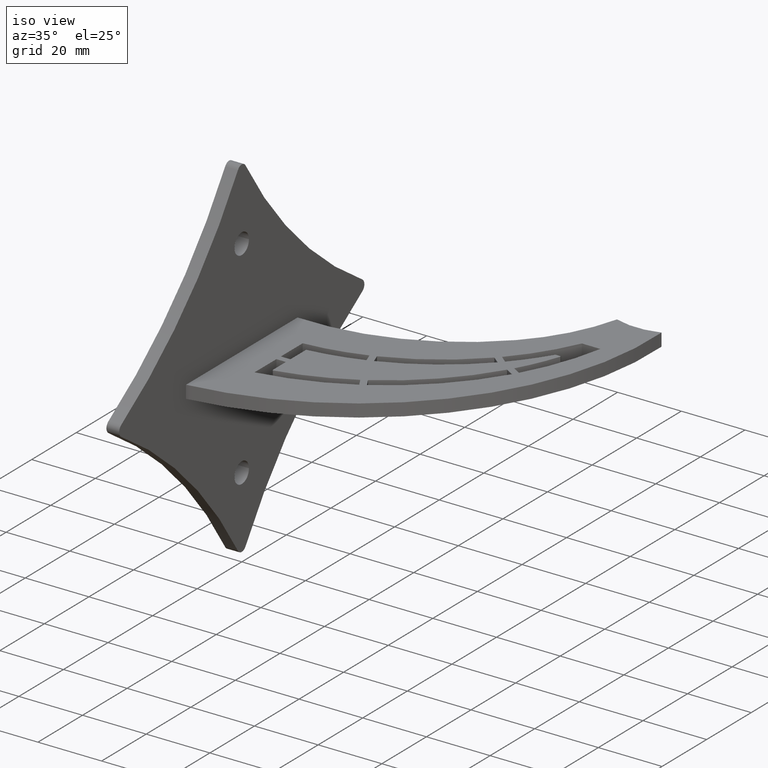
[diagram: clean part render]
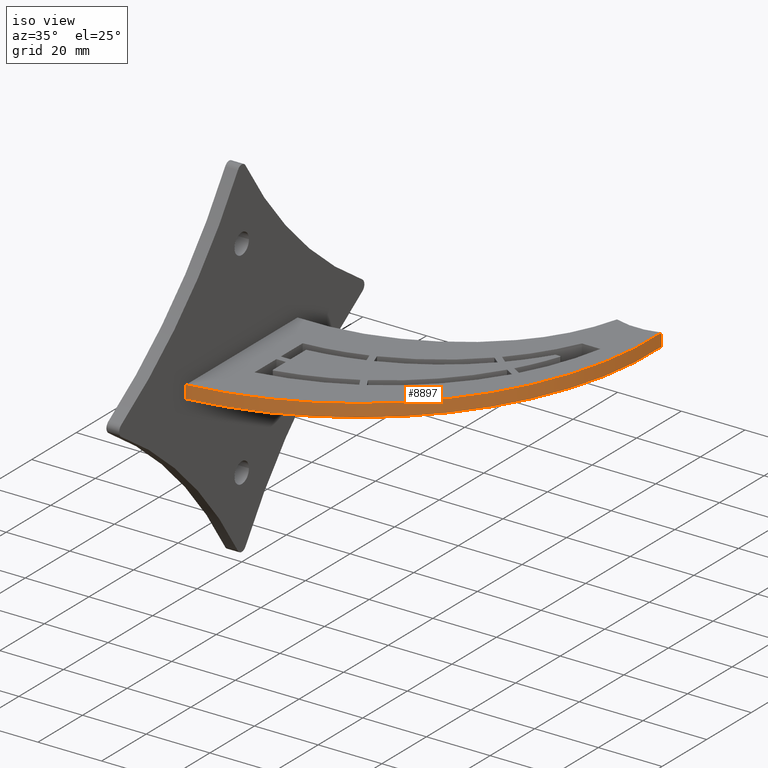
[diagram: same view with one face highlighted and labeled with its STEP entity id]
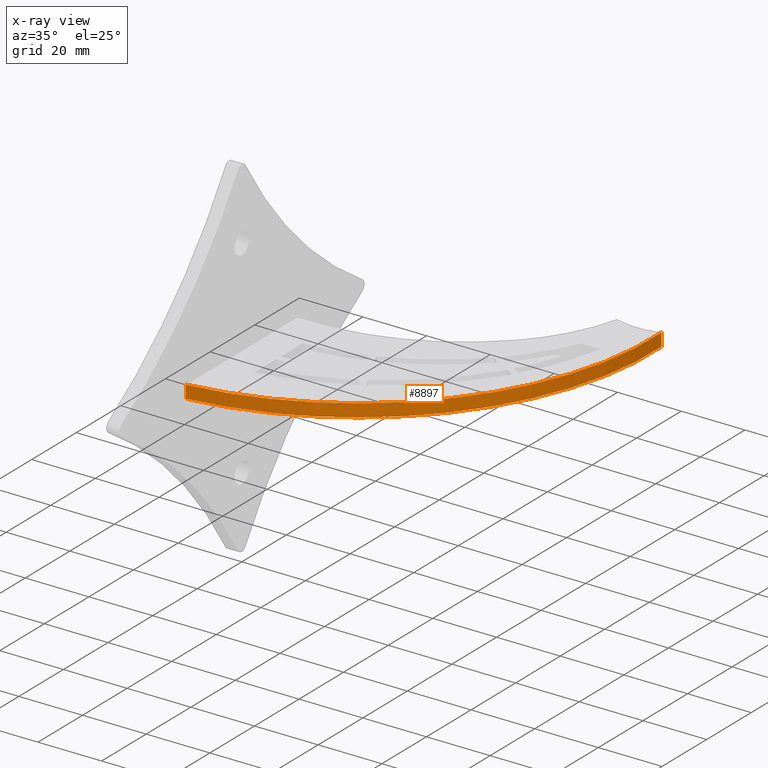
[diagram: x-ray of the same camera — body ghosted, the highlighted face saturated]
A machine part, iso view. The second image highlights one B-rep face of the part: STEP entity #8897.
The next image is the same camera in x-ray: the body ghosted, the highlighted face saturated — about 0% of this face is hidden behind the body in this view.
In plain terms, the highlighted cylindrical surface (partial cylindrical patch) has radius 92 mm, axis along (-0, -0, -1).
Its self-contained STEP definition (entity closure, byte-faithful):
#142 = DIRECTION ( 'NONE',  ( -0.000000000000000000, -0.000000000000000000, -1.000000000000000000 ) ) ;
#371 = VERTEX_POINT ( 'NONE', #3362 ) ;
#972 = LINE ( 'NONE', #1583, #5935 ) ;
#1151 = VECTOR ( 'NONE', #142, 1000.000000000000000 ) ;
#1583 = CARTESIAN_POINT ( 'NONE',  ( 2.220446049250313081E-13, -24.99999999999879918, 2.000000000000000000 ) ) ;
#1842 = FACE_OUTER_BOUND ( 'NONE', #5920, .T. ) ;
#1971 = LINE ( 'NONE', #8501, #1151 ) ;
#3036 = CARTESIAN_POINT ( 'NONE',  ( -9.878794471127335441, 66.46807869304582539, -2.000000000000000000 ) ) ;
#3362 = CARTESIAN_POINT ( 'NONE',  ( -1.998139615876600116E-12, -24.99999999999961986, 2.000000000000000000 ) ) ;
#3431 = CARTESIAN_POINT ( 'NONE',  ( 81.99999999999997158, 71.18900302333739205, 2.000000000000000000 ) ) ;
#3924 = CARTESIAN_POINT ( 'NONE',  ( -9.878794471127335441, 66.46807869304582539, 2.000000000000000000 ) ) ;
#5027 = EDGE_CURVE ( 'NONE', #10942, #7633, #1971, .T. ) ;
#5425 = CIRCLE ( 'NONE', #8614, 91.99999999999938893 ) ;
#5477 = ORIENTED_EDGE ( 'NONE', *, *, #5027, .F. ) ;
#5920 = EDGE_LOOP ( 'NONE', ( #12720, #5477, #8381, #7351 ) ) ;
#5935 = VECTOR ( 'NONE', #11131, 1000.000000000000000 ) ;
#6039 = DIRECTION ( 'NONE',  ( 1.000000000000000000, 0.000000000000000000, 0.000000000000000000 ) ) ;
#6067 = DIRECTION ( 'NONE',  ( -1.000000000000000000, 0.000000000000000000, 0.000000000000000000 ) ) ;
#6202 = DIRECTION ( 'NONE',  ( 1.000000000000000000, 0.000000000000000000, 0.000000000000000000 ) ) ;
#7351 = ORIENTED_EDGE ( 'NONE', *, *, #13565, .T. ) ;
#7633 = VERTEX_POINT ( 'NONE', #11323 ) ;
#8286 = DIRECTION ( 'NONE',  ( -0.000000000000000000, -0.000000000000000000, -1.000000000000000000 ) ) ;
#8381 = ORIENTED_EDGE ( 'NONE', *, *, #9657, .F. ) ;
#8501 = CARTESIAN_POINT ( 'NONE',  ( 81.99999999999997158, 71.18900302333739205, 2.000000000000000000 ) ) ;
#8614 = AXIS2_PLACEMENT_3D ( 'NONE', #3036, #12503, #6202 ) ;
#8832 = CARTESIAN_POINT ( 'NONE',  ( -1.998401444325186453E-12, -24.99999999999879918, -2.000000000000000000 ) ) ;
#8897 = ADVANCED_FACE ( 'NONE', ( #1842 ), #8931, .T. ) ;
#8931 = CYLINDRICAL_SURFACE ( 'NONE', #10032, 91.99999999999941735 ) ;
#8984 = EDGE_CURVE ( 'NONE', #11026, #7633, #5425, .T. ) ;
#9448 = CIRCLE ( 'NONE', #10387, 91.99999999999938893 ) ;
#9657 = EDGE_CURVE ( 'NONE', #371, #10942, #9448, .T. ) ;
#10032 = AXIS2_PLACEMENT_3D ( 'NONE', #3924, #8286, #6067 ) ;
#10282 = DIRECTION ( 'NONE',  ( -0.000000000000000000, 0.000000000000000000, 1.000000000000000000 ) ) ;
#10387 = AXIS2_PLACEMENT_3D ( 'NONE', #11289, #10282, #6039 ) ;
#10942 = VERTEX_POINT ( 'NONE', #3431 ) ;
#11026 = VERTEX_POINT ( 'NONE', #8832 ) ;
#11131 = DIRECTION ( 'NONE',  ( -0.000000000000000000, -0.000000000000000000, -1.000000000000000000 ) ) ;
#11289 = CARTESIAN_POINT ( 'NONE',  ( -9.878794471127335441, 66.46807869304582539, 2.000000000000000000 ) ) ;
#11323 = CARTESIAN_POINT ( 'NONE',  ( 81.99999999999997158, 71.18900302333739205, -2.000000000000000000 ) ) ;
#12503 = DIRECTION ( 'NONE',  ( -0.000000000000000000, 0.000000000000000000, 1.000000000000000000 ) ) ;
#12720 = ORIENTED_EDGE ( 'NONE', *, *, #8984, .T. ) ;
#13565 = EDGE_CURVE ( 'NONE', #371, #11026, #972, .T. ) ;